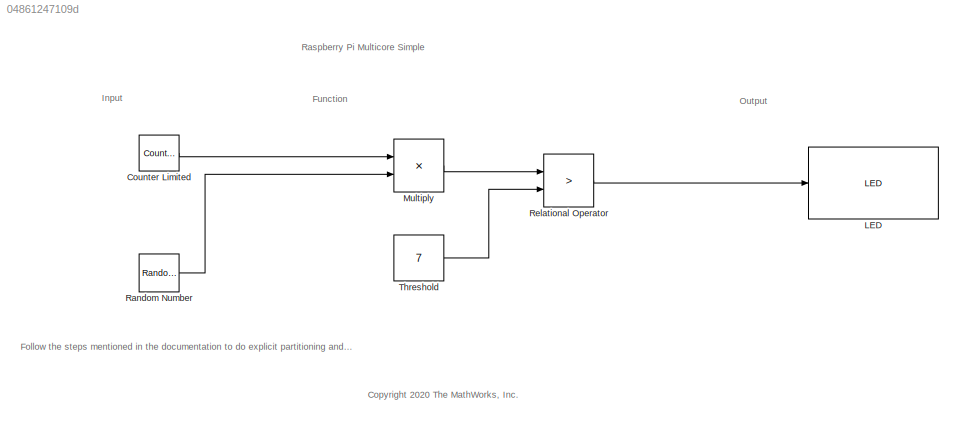
MODEL slx_04861247109d
KIND model
CONFIG AbsTol = auto
CONFIG EnableMultiTasking = on
CONFIG FixedStep = auto
CONFIG MaxStep = auto
CONFIG MinStep = auto
CONFIG RelTol = 1e-3
CONFIG SampleTimeConstraint = Unconstrained
CONFIG SolverName = FixedStepAuto
CONFIG StartTime = 0.0
CONFIG StopTime = 10.0
BLOCK [Reference] Counter Limited  REF=simulink/Sources/Counter
Limited
  Ports = [0, 1]
  SourceBlock = simulink/Sources/Counter\nLimited
  SourceProductBaseCode = SL
  SourceType = Counter Limited
BLOCK [Reference] LED  REF=raspberrypiBasiclib/LED
  Ports = [1]
  SourceBlock = raspberrypiBasiclib/LED
  SourceProductBaseCode = RASPPI
  SourceType = codertarget.raspi.internal.LEDBlock
BLOCK [Product] Multiply
  Inputs = **
  Ports = [2, 1]
BLOCK [RandomNumber] Random Number
  SampleTime = 0.5
BLOCK [RelationalOperator] Relational Operator
  InputSameDT = off
  Operator = >
  OutDataTypeStr = boolean
  Ports = [2, 1]
BLOCK [Constant] Threshold 
  OutDataTypeStr = uint8
  SampleTime = -1
  Value = 7
ANNOTATION (root): Follow the steps mentioned in the documentation to do explicit partitioning and concurrently execute tasks on a multicore Raspberry Pi
ANNOTATION (root): <copyright redacted>
ANNOTATION (root): Function
ANNOTATION (root): Input
ANNOTATION (root): Output
ANNOTATION (root): Raspberry Pi Multicore Simple
LINE Counter Limited:1 -> Multiply:1
LINE Multiply:1 -> Relational Operator:1
LINE Random Number:1 -> Multiply:2
LINE Relational Operator:1 -> LED:1
LINE Threshold :1 -> Relational Operator:2
